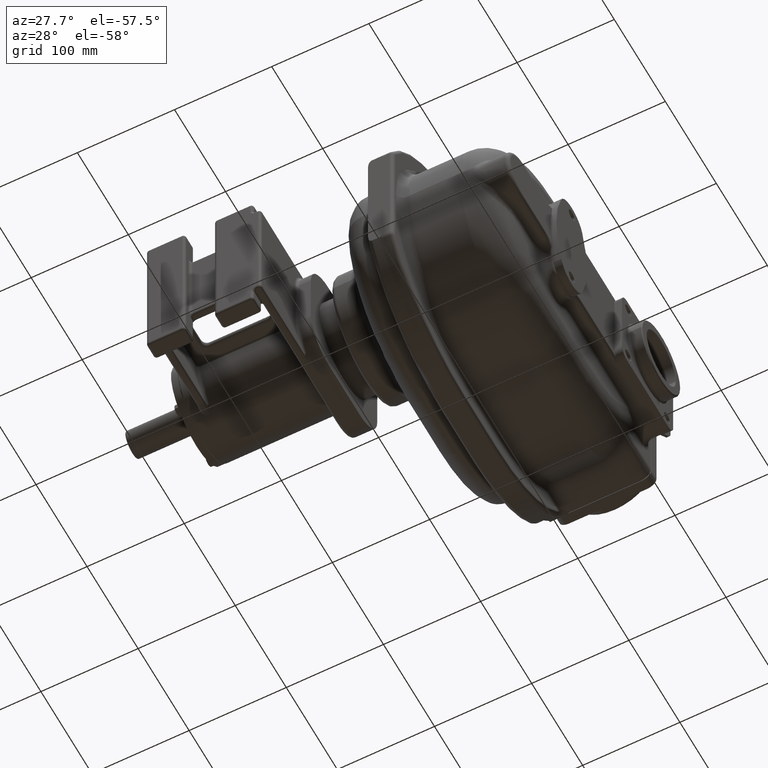
[diagram: clean part render]
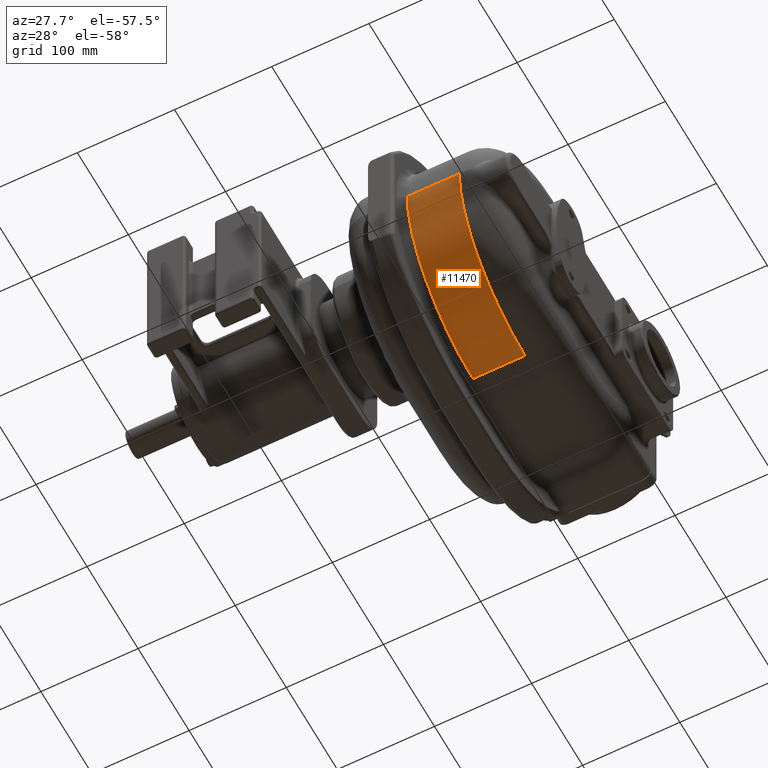
[diagram: same view with one face highlighted and labeled with its STEP entity id]
A machine part, auxiliary view. The second image highlights one B-rep face of the part: STEP entity #11470.
In plain terms, the highlighted cylindrical surface (partial cylindrical patch) has radius 129 mm, axis along (-1, 0, 0).
Its self-contained STEP definition (entity closure, byte-faithful):
#621=DIRECTION('',(-1.E0,0.E0,0.E0));
#622=VECTOR('',#621,5.35E1);
#623=CARTESIAN_POINT('',(4.8E1,-1.24E2,-4.999999999999E0));
#624=LINE('',#623,#622);
#625=DIRECTION('',(-1.E0,0.E0,0.E0));
#626=VECTOR('',#625,5.35E1);
#627=CARTESIAN_POINT('',(4.8E1,5.E0,-1.34E2));
#628=LINE('',#627,#626);
#629=CARTESIAN_POINT('',(-5.5E0,5.E0,-5.E0));
#630=DIRECTION('',(1.E0,0.E0,0.E0));
#631=DIRECTION('',(0.E0,-1.E0,0.E0));
#632=AXIS2_PLACEMENT_3D('',#629,#630,#631);
#634=CARTESIAN_POINT('',(4.8E1,5.E0,-5.E0));
#635=DIRECTION('',(1.E0,0.E0,0.E0));
#636=DIRECTION('',(0.E0,-1.E0,0.E0));
#637=AXIS2_PLACEMENT_3D('',#634,#635,#636);
#8358=CARTESIAN_POINT('',(4.8E1,5.E0,-1.34E2));
#8360=VERTEX_POINT('',#8358);
#8362=CARTESIAN_POINT('',(4.8E1,-1.24E2,-4.999999999999E0));
#8363=VERTEX_POINT('',#8362);
#8511=CARTESIAN_POINT('',(-5.5E0,-1.24E2,-4.999999999999E0));
#8512=VERTEX_POINT('',#8511);
#8515=CARTESIAN_POINT('',(-5.5E0,5.E0,-1.34E2));
#8516=VERTEX_POINT('',#8515);
#11458=CARTESIAN_POINT('',(-2.35E1,5.E0,-5.E0));
#11459=DIRECTION('',(-1.E0,0.E0,0.E0));
#11460=DIRECTION('',(0.E0,0.E0,1.E0));
#11461=AXIS2_PLACEMENT_3D('',#11458,#11459,#11460);
#11462=CYLINDRICAL_SURFACE('',#11461,1.29E2);
#11464=ORIENTED_EDGE('',*,*,#11463,.T.);
#11465=ORIENTED_EDGE('',*,*,#11385,.F.);
#11466=ORIENTED_EDGE('',*,*,#11453,.F.);
#11467=ORIENTED_EDGE('',*,*,#9847,.T.);
#11468=EDGE_LOOP('',(#11464,#11465,#11466,#11467));
#11469=FACE_OUTER_BOUND('',#11468,.F.);
#11470=ADVANCED_FACE('',(#11469),#11462,.T.);
#633=CIRCLE('',#632,1.29E2);
#638=CIRCLE('',#637,1.29E2);
#9847=EDGE_CURVE('',#8363,#8360,#638,.T.);
#11385=EDGE_CURVE('',#8512,#8516,#633,.T.);
#11453=EDGE_CURVE('',#8363,#8512,#624,.T.);
#11463=EDGE_CURVE('',#8360,#8516,#628,.T.);